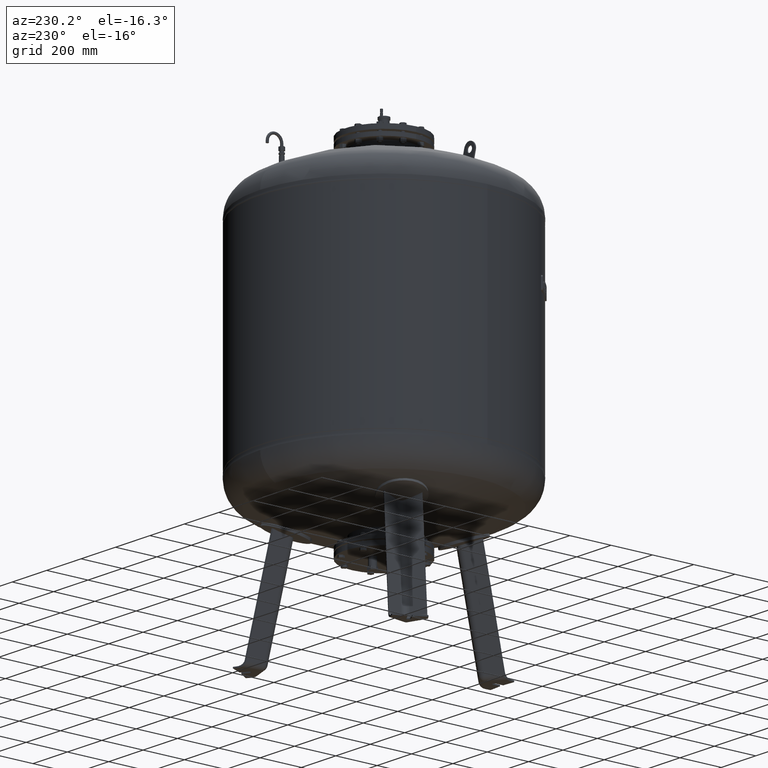
[diagram: clean part render]
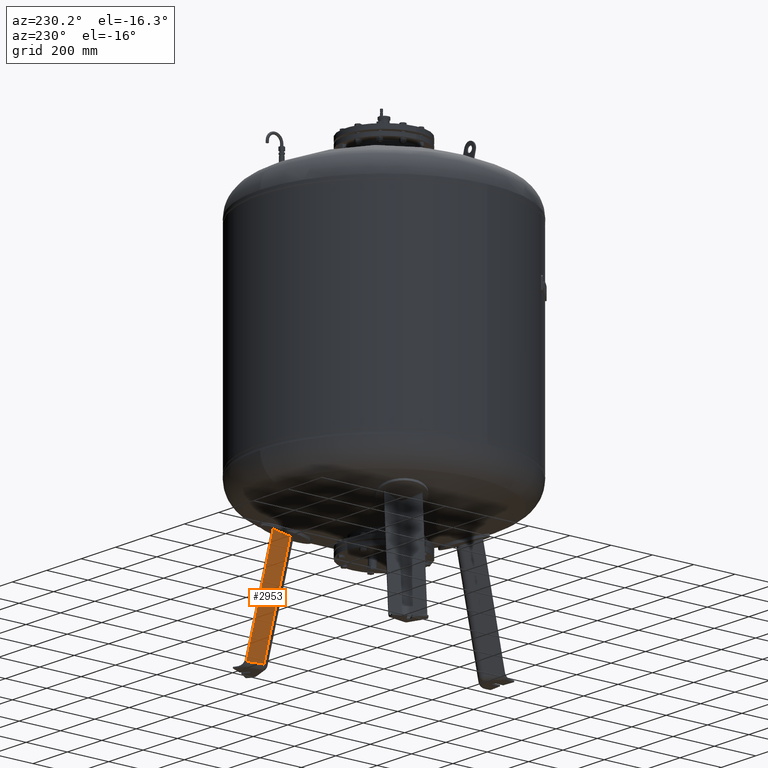
[diagram: same view with one face highlighted and labeled with its STEP entity id]
A machine part, auxiliary view. The second image highlights one B-rep face of the part: STEP entity #2953.
In plain terms, the highlighted planar face has unit normal (-0.9697, 0.1854, -0.1588).
Its self-contained STEP definition (entity closure, byte-faithful):
#2168=CARTESIAN_POINT('',(398.505553854202280,248.710057248237350,21.029948423057281));
#2169=VERTEX_POINT('',#2168);
#2210=CARTESIAN_POINT('',(412.743118968847450,323.167840413704710,21.029948423057284));
#2211=VERTEX_POINT('',#2210);
#2212=CARTESIAN_POINT('',(398.505553854202280,248.710057248237350,21.029948423057281));
#2213=DIRECTION('',(0.187813845079449,0.982204642422582,4.686537E-017));
#2214=VECTOR('',#2213,75.806792138366575);
#2215=LINE('',#2212,#2214);
#2216=EDGE_CURVE('',#2169,#2211,#2215,.T.);
#2702=CARTESIAN_POINT('',(309.243106825412270,197.174359427640810,505.942739782580020));
#2703=VERTEX_POINT('',#2702);
#2704=CARTESIAN_POINT('',(320.100983866293630,269.680878773943680,524.302688812935000));
#2705=VERTEX_POINT('',#2704);
#2706=CARTESIAN_POINT('',(116.635947881441950,19.973877625133753,1475.203780025492300));
#2707=DIRECTION('',(0.969740897595359,-0.185430570007245,0.158802063077709));
#2708=DIRECTION('',(0.180056805991956,0.103955845408880,-0.978147600733805));
#2709=AXIS2_PLACEMENT_3D('',#2706,#2707,#2708);
#2710=CIRCLE('',#2709,1003.974348556914600);
#2711=EDGE_CURVE('',#2703,#2705,#2710,.T.);
#2925=CARTESIAN_POINT('',(309.243106825412270,197.174359427640810,505.942739782580020));
#2926=DIRECTION('',(0.180056805991956,0.103955845408880,-0.978147600733806));
#2927=VECTOR('',#2926,495.746031576156330);
#2928=LINE('',#2925,#2927);
#2929=EDGE_CURVE('',#2703,#2169,#2928,.T.);
#2937=CARTESIAN_POINT('',(402.334414647440890,232.287882600950410,-21.527282742766886));
#2938=DIRECTION('',(-0.969740897595359,0.185430570007245,-0.158802063077709));
#2939=DIRECTION('',(0.180056805991956,0.103955845408880,-0.978147600733806));
#2940=AXIS2_PLACEMENT_3D('',#2937,#2938,#2939);
#2941=PLANE('',#2940);
#2942=ORIENTED_EDGE('',*,*,#2711,.T.);
#2943=CARTESIAN_POINT('',(412.743118968847450,323.167840413704710,21.029948423057284));
#2944=DIRECTION('',(-0.180056805991956,-0.103955845408880,0.978147600733806));
#2945=VECTOR('',#2944,514.516152789541020);
#2946=LINE('',#2943,#2945);
#2947=EDGE_CURVE('',#2211,#2705,#2946,.T.);
#2948=ORIENTED_EDGE('',*,*,#2947,.F.);
#2949=ORIENTED_EDGE('',*,*,#2216,.F.);
#2950=ORIENTED_EDGE('',*,*,#2929,.F.);
#2951=EDGE_LOOP('',(#2942,#2948,#2949,#2950));
#2952=FACE_OUTER_BOUND('',#2951,.T.);
#2953=ADVANCED_FACE('',(#2952),#2941,.T.);